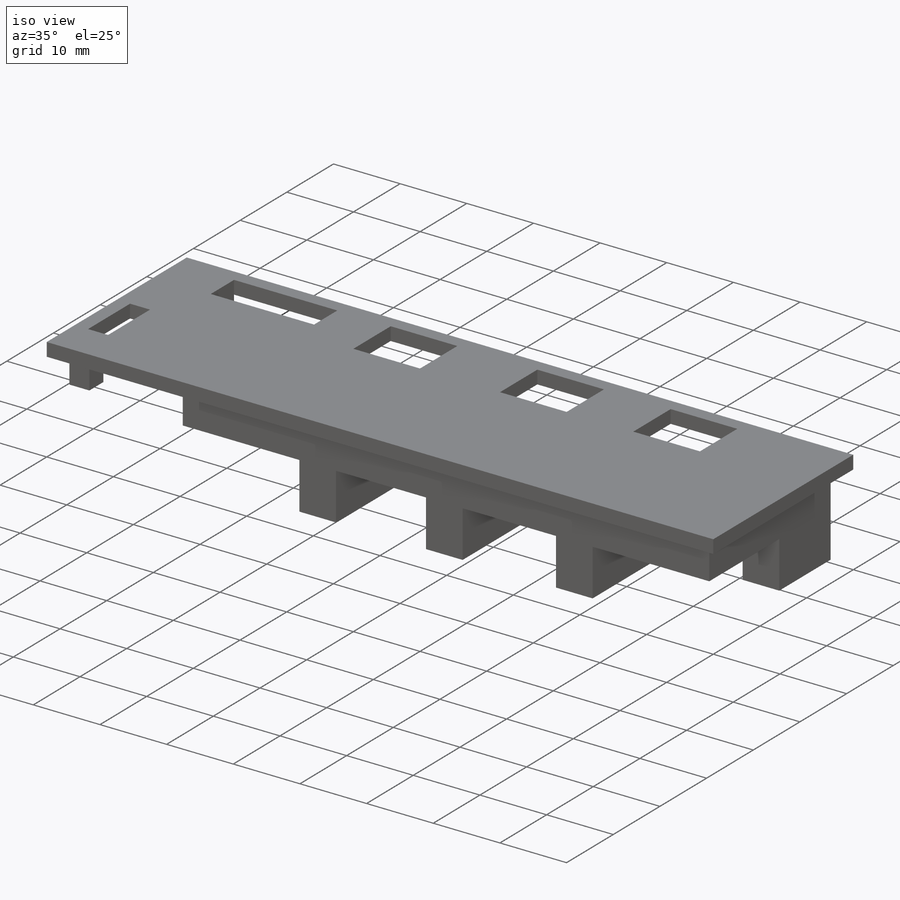
[diagram: iso view]
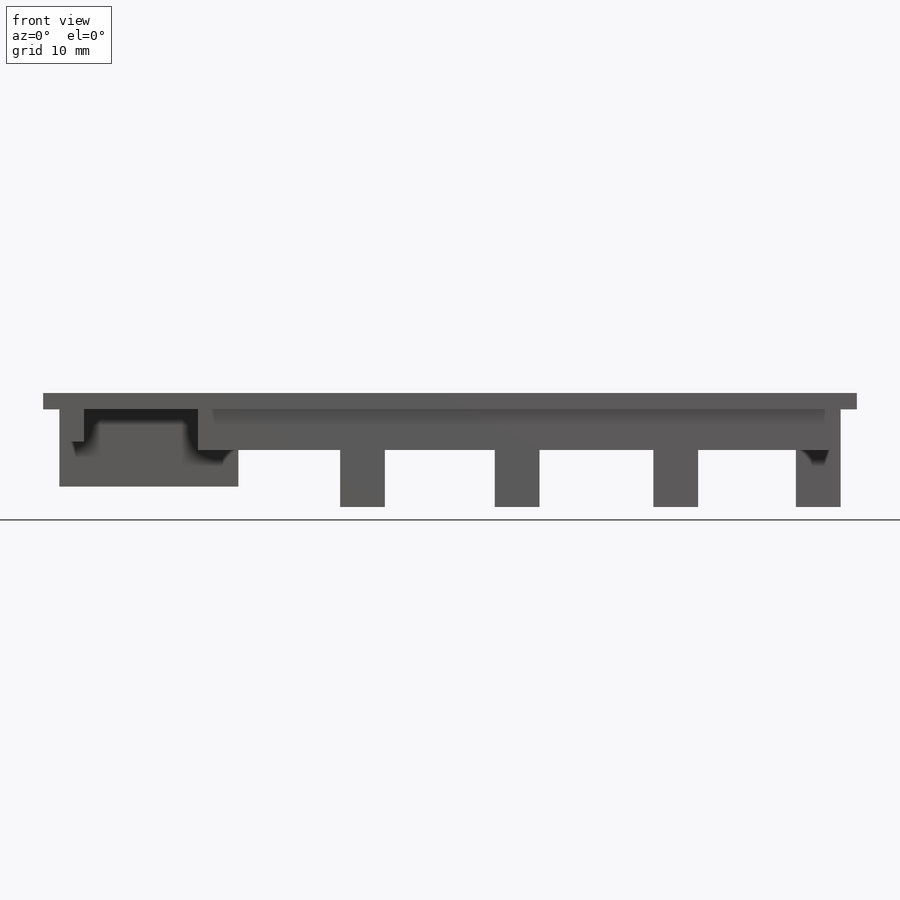
[diagram: front view]
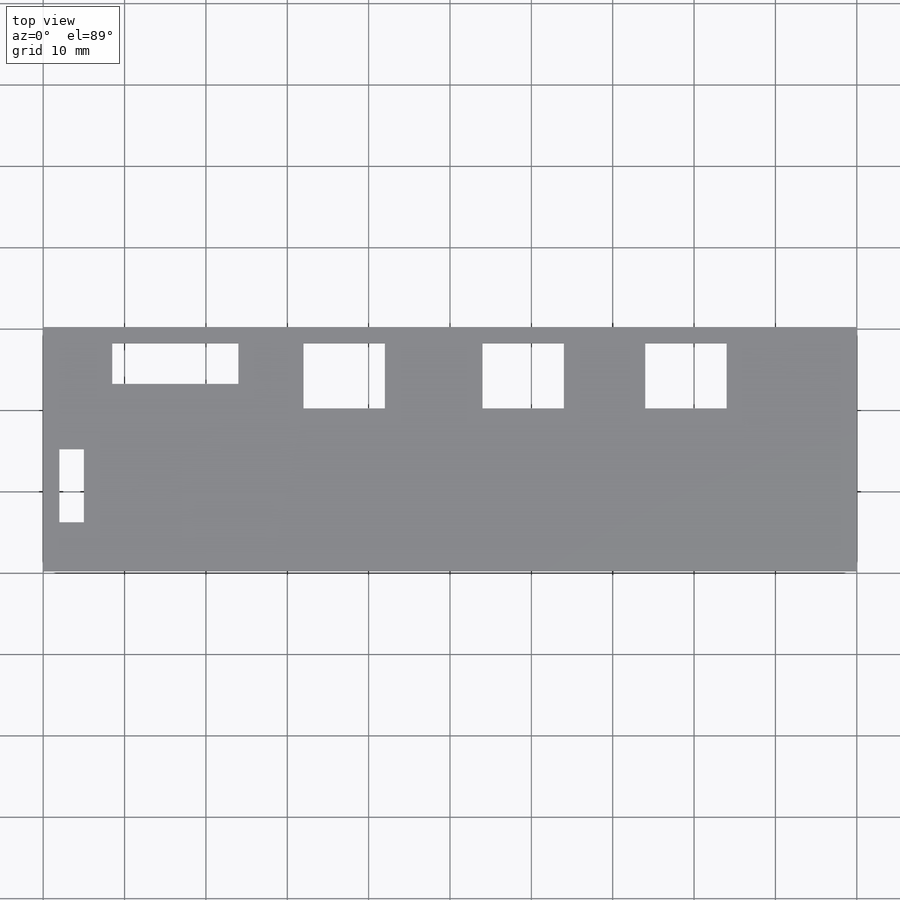
[diagram: top view]
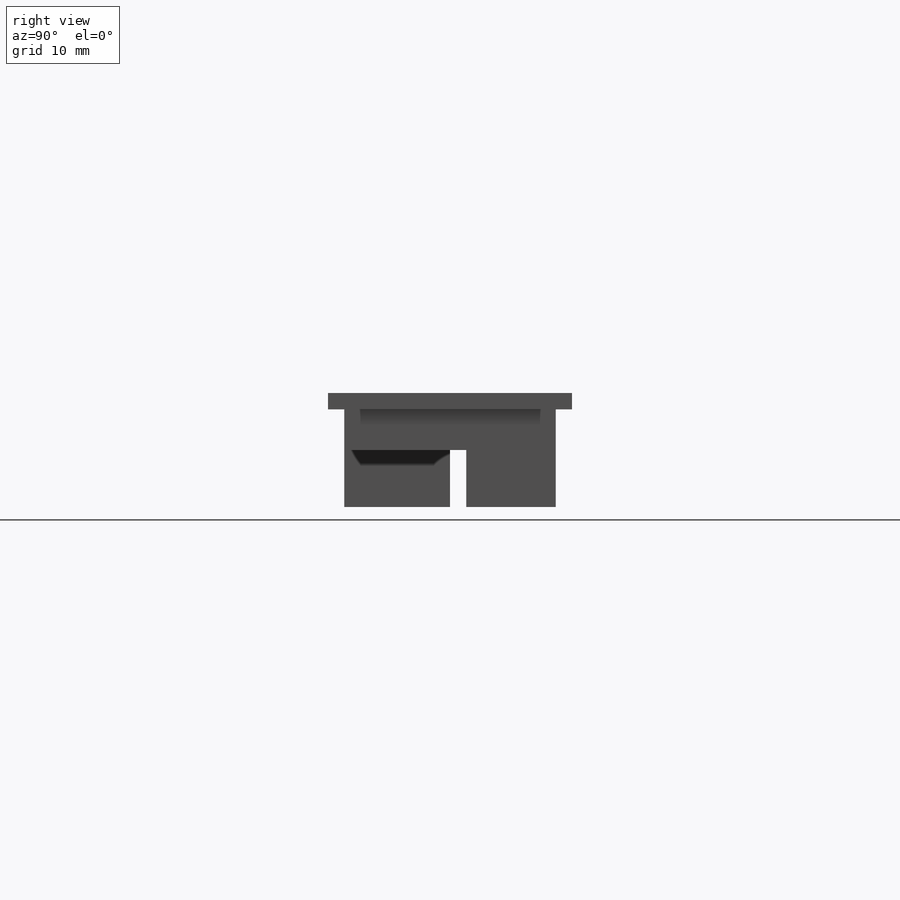
[diagram: right view]
SOLIDWORKS PART (.sldprt)
format: sldprt  version: not decoded by parser v0  size: 630,784 bytes
history: native  units: mm
features: sketch x6, extrude x6, material x1 (+12 scaffold rows collapsed)
feature tree (25):
  scaffold x12  (default folders/planes/origin — collapsed)
  material  "Material <not specified>"
  sketch  "Sketch1"  dims[c1.D1=30.0mm c1.D2=8.0mm c1.D3=14.0mm c1.D4=10.0mm c1.D5=10.0mm c1.D6=10.0mm c1.D7=12.0mm c1.D8=10.0mm c1.D9=8.0mm c1.D10=3.0mm c1.D11=6.5mm c1.D12=4.0mm c1.D13=6.0mm c2.D1=2.0mm]
  extrude  "Boss-Extrude3"  Depth=2mm
  sketch  "Sketch2"  dims[D2=11.0mm D1=2.0mm]
  extrude  "Boss-Extrude4"  Depth=12mm
  sketch  "Sketch3"  dims[D1=2.0mm D2=22.0mm]
  extrude  "Boss-Extrude5"  Depth=9.5mm
  sketch  "Sketch9"  dims[D1=2.0mm D2=2.0mm]
  extrude  "Boss-Extrude17"  Depth=4mm
  sketch  "Sketch12"  dims[D1=2.0mm D2=0.0mm]
  extrude  "Boss-Extrude22"  Depth=5mm
  sketch  "Sketch13"  dims[c1.D1=17.5mm c1.D2=13.0mm c2.D1=17.5mm c2.D2=37.0mm c2.D3=56.0mm c2.D4=5.5mm]
  extrude  "Boss-Extrude23"  Depth=7mm
decode coverage: 12 of 12 modeling features carry decoded parameters
note: suppression state not decoded; provenance and decode notes live in map.json
